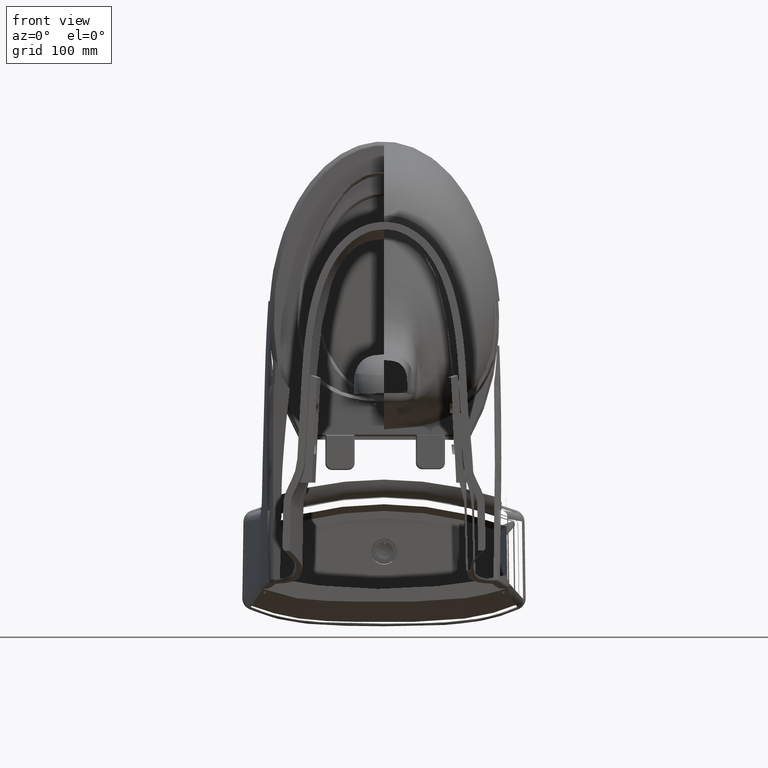
[diagram: clean part render]
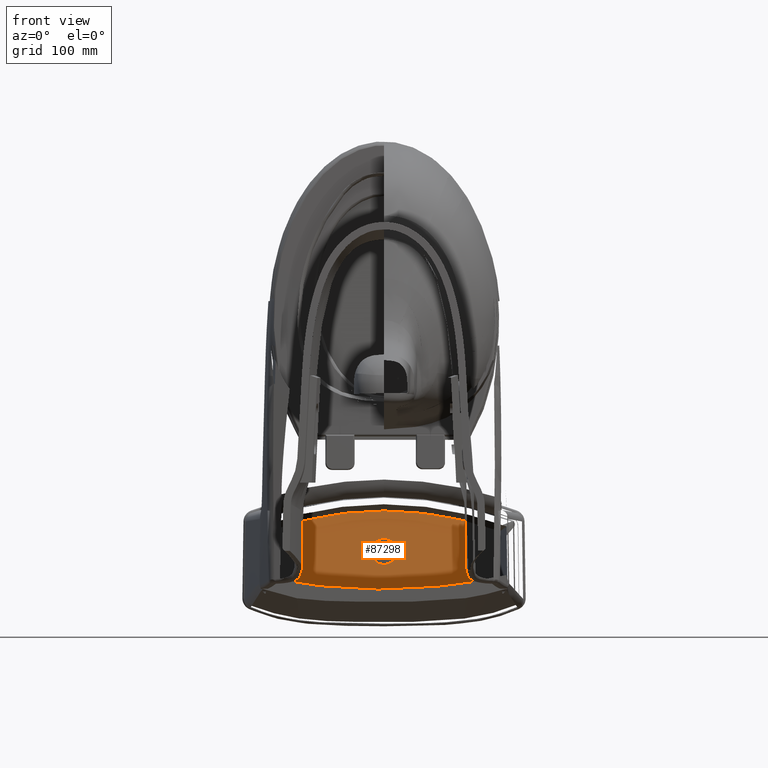
[diagram: same view with one face highlighted and labeled with its STEP entity id]
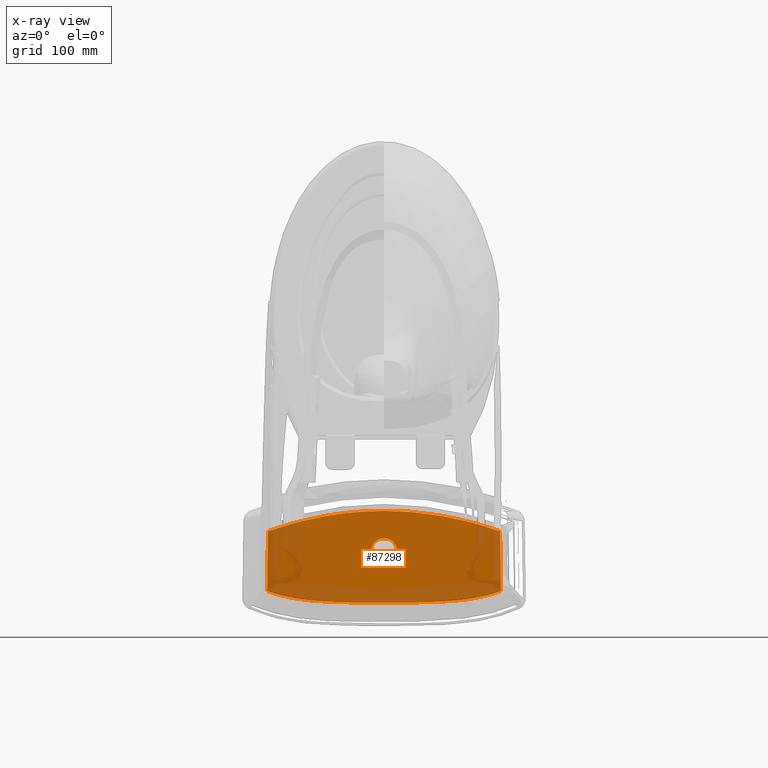
[diagram: x-ray of the same camera — body ghosted, the highlighted face saturated]
A machine part, front view. The second image highlights one B-rep face of the part: STEP entity #87298.
The next image is the same camera in x-ray: the body ghosted, the highlighted face saturated — about 32% of this face is hidden behind the body in this view.
In plain terms, the highlighted planar face has unit normal (0, -1, 0).
Its self-contained STEP definition (entity closure, byte-faithful):
#320 = CARTESIAN_POINT ( 'NONE',  ( 6.814301420918656800, 8.841708929692153200, 12.22677165400000000 ) ) ;
#373 = EDGE_CURVE ( 'NONE', #78906, #5636, #31769, .T. ) ;
#1837 = VERTEX_POINT ( 'NONE', #130178 ) ;
#1900 = EDGE_CURVE ( 'NONE', #68440, #115019, #59131, .T. ) ;
#2082 = B_SPLINE_CURVE_WITH_KNOTS ( 'NONE', 3,
 ( #23679, #184875, #81380, #185526 ),
 .UNSPECIFIED., .F., .F.,
 ( 4, 4 ),
 ( 0.0000000000000000000, 1.000000000000000000 ),
 .UNSPECIFIED. ) ;
#2390 = CARTESIAN_POINT ( 'NONE',  ( -0.9569594669106298300, 3.894683990885131000, 12.22677165400000000 ) ) ;
#3180 = CARTESIAN_POINT ( 'NONE',  ( -0.7621854053698152700, 6.537085579512861100, 12.22677165400000000 ) ) ;
#3389 = ORIENTED_EDGE ( 'NONE', *, *, #117992, .T. ) ;
#3444 = VERTEX_POINT ( 'NONE', #132008 ) ;
#3528 = CARTESIAN_POINT ( 'NONE',  ( -4.191811226497374100, 9.338006235245144300, 12.22677165400000000 ) ) ;
#3606 = CARTESIAN_POINT ( 'NONE',  ( -0.05170152306186206300, 5.545361485922833300, 12.22677165400000000 ) ) ;
#5077 = ORIENTED_EDGE ( 'NONE', *, *, #49901, .T. ) ;
#5124 = B_SPLINE_CURVE_WITH_KNOTS ( 'NONE', 3,
 ( #120003, #161168, #147640, #131604 ),
 .UNSPECIFIED., .F., .F.,
 ( 4, 4 ),
 ( 0.0000000000000000000, 1.000000000000000000 ),
 .UNSPECIFIED. ) ;
#5196 = VERTEX_POINT ( 'NONE', #136303 ) ;
#5376 = CARTESIAN_POINT ( 'NONE',  ( 0.3944686247231512500, 5.649338749271654700, 12.22677165400000000 ) ) ;
#5394 = CARTESIAN_POINT ( 'NONE',  ( 3.574063546760827000, 4.194614480752756300, 12.22677165400000000 ) ) ;
#5426 = EDGE_CURVE ( 'NONE', #9235, #182448, #86243, .T. ) ;
#5636 = VERTEX_POINT ( 'NONE', #185675 ) ;
#5979 = B_SPLINE_CURVE_WITH_KNOTS ( 'NONE', 3,
 ( #26959, #129678, #141925, #170901 ),
 .UNSPECIFIED., .F., .F.,
 ( 4, 4 ),
 ( 0.0000000000000000000, 1.000000000000000000 ),
 .UNSPECIFIED. ) ;
#6165 = CARTESIAN_POINT ( 'NONE',  ( -2.861144333287403800, 4.077594435480709700, 12.22677165400000000 ) ) ;
#6623 = EDGE_CURVE ( 'NONE', #27086, #185888, #174955, .T. ) ;
#7278 = CARTESIAN_POINT ( 'NONE',  ( 0.3490915139349230500, 5.625084177008006700, 12.22677165400000000 ) ) ;
#7339 = VERTEX_POINT ( 'NONE', #43379 ) ;
#7761 = CARTESIAN_POINT ( 'NONE',  ( 0.6547004891059451400, 6.770219938139369700, 12.22677165400000000 ) ) ;
#7989 = B_SPLINE_CURVE_WITH_KNOTS ( 'NONE', 3,
 ( #135152, #60098, #63823, #95267 ),
 .UNSPECIFIED., .F., .F.,
 ( 4, 4 ),
 ( 6.011369273682185300E-009, 0.9999999944473523300 ),
 .UNSPECIFIED. ) ;
#8234 = CARTESIAN_POINT ( 'NONE',  ( 0.4374568734168499100, 6.987463543383463500, 12.22677165400000000 ) ) ;
#8453 = CARTESIAN_POINT ( 'NONE',  ( 0.5126521425694678900, 3.877636081133635700, 12.22677165400000000 ) ) ;
#9235 = VERTEX_POINT ( 'NONE', #107630 ) ;
#9403 = EDGE_CURVE ( 'NONE', #144144, #131309, #85239, .T. ) ;
#9527 = CARTESIAN_POINT ( 'NONE',  ( 4.191410755424147500, 9.338039169035695900, 12.22677165400000000 ) ) ;
#10091 = CARTESIAN_POINT ( 'NONE',  ( -2.104938309406821300, 9.432147332707877800, 12.22677165400000000 ) ) ;
#10092 = CARTESIAN_POINT ( 'NONE',  ( 6.385914037462086400, 8.972021173760232700, 12.22677165400000000 ) ) ;
#10479 = CARTESIAN_POINT ( 'NONE',  ( 4.158307130771982300, 4.298243123015224000, 12.22677165400000000 ) ) ;
#11081 = CARTESIAN_POINT ( 'NONE',  ( -0.4374568830192923100, 5.678062575759053500, 12.22677165400000000 ) ) ;
#11313 = CARTESIAN_POINT ( 'NONE',  ( -1.794948935920472200, 9.438067504209449500, 12.22677165400000000 ) ) ;
#12000 = B_SPLINE_CURVE_WITH_KNOTS ( 'NONE', 3,
 ( #150007, #77293, #2390, #149364 ),
 .UNSPECIFIED., .F., .F.,
 ( 4, 4 ),
 ( 0.0000000000000000000, 1.000000000000000000 ),
 .UNSPECIFIED. ) ;
#12076 = CARTESIAN_POINT ( 'NONE',  ( 4.782898793892256300, 9.278486353399344500, 12.22677165400000000 ) ) ;
#12584 = VERTEX_POINT ( 'NONE', #158303 ) ;
#12713 = CARTESIAN_POINT ( 'NONE',  ( 4.482432253766930300, 9.310825966196063100, 12.22677165400000000 ) ) ;
#12859 = B_SPLINE_CURVE_WITH_KNOTS ( 'NONE', 3,
 ( #86739, #101514, #56648, #42473 ),
 .UNSPECIFIED., .F., .F.,
 ( 4, 4 ),
 ( 0.0000000000000000000, 1.000000000000000000 ),
 .UNSPECIFIED. ) ;
#12886 = CARTESIAN_POINT ( 'NONE',  ( -2.401624619230052100, 9.425249699620735600, 12.22677165400000000 ) ) ;
#12944 = ORIENTED_EDGE ( 'NONE', *, *, #140172, .T. ) ;
#13283 = ORIENTED_EDGE ( 'NONE', *, *, #134782, .T. ) ;
#13335 = CARTESIAN_POINT ( 'NONE',  ( 0.2043225206306295000, 7.094948466135433000, 12.22677165400000000 ) ) ;
#13369 = B_SPLINE_CURVE_WITH_KNOTS ( 'NONE', 3,
 ( #60247, #163023, #146969, #189459 ),
 .UNSPECIFIED., .F., .F.,
 ( 4, 4 ),
 ( 0.0000000000000000000, 1.000000000000000000 ),
 .UNSPECIFIED. ) ;
#13508 = ORIENTED_EDGE ( 'NONE', *, *, #63593, .T. ) ;
#13657 = ORIENTED_EDGE ( 'NONE', *, *, #126683, .T. ) ;
#13714 = VERTEX_POINT ( 'NONE', #175162 ) ;
#13776 = B_SPLINE_CURVE_WITH_KNOTS ( 'NONE', 3,
 ( #150630, #140976, #96649, #139708 ),
 .UNSPECIFIED., .F., .F.,
 ( 4, 4 ),
 ( 0.0000000000000000000, 1.000000000000000000 ),
 .UNSPECIFIED. ) ;
#14601 = CARTESIAN_POINT ( 'NONE',  ( 0.2535595585950785000, 7.080012574451181700, 12.22677165400000000 ) ) ;
#14771 = EDGE_CURVE ( 'NONE', #40895, #68440, #146194, .T. ) ;
#16196 = EDGE_CURVE ( 'NONE', #140010, #131880, #27214, .T. ) ;
#16332 = VERTEX_POINT ( 'NONE', #31190 ) ;
#16985 = EDGE_CURVE ( 'NONE', #115019, #118107, #130732, .T. ) ;
#17389 = CARTESIAN_POINT ( 'NONE',  ( 1.955131945138242700, 9.435199952326510000, 12.22677165400000000 ) ) ;
#17596 = CARTESIAN_POINT ( 'NONE',  ( -0.3013255362931887000, 5.605298858968109400, 12.22677165400000000 ) ) ;
#17599 = CARTESIAN_POINT ( 'NONE',  ( -3.571732609500395000, 4.194170856610630200, 12.22677165400000000 ) ) ;
#18120 = CARTESIAN_POINT ( 'NONE',  ( 0.7472495179849604200, 6.079203503020077700, 12.22677165400000000 ) ) ;
#18255 = VERTEX_POINT ( 'NONE', #83243 ) ;
#18968 = CARTESIAN_POINT ( 'NONE',  ( -4.801266558432840900E-009, 5.545361485922833300, 12.22677165400000000 ) ) ;
#19335 = DIRECTION ( 'NONE',  ( 0.0000000000000000000, 0.0000000000000000000, -1.000000000000000000 ) ) ;
#19792 = VERTEX_POINT ( 'NONE', #66282 ) ;
#19986 = CARTESIAN_POINT ( 'NONE',  ( 3.574063546760827000, 4.194614480752756300, 12.22677165400000000 ) ) ;
#20611 = CARTESIAN_POINT ( 'NONE',  ( 7.180759980999999600, 3.844174412999999700, 12.22677165400000000 ) ) ;
#20812 = CARTESIAN_POINT ( 'NONE',  ( -4.927199860106297200, 9.259544408294095400, 12.22677165400000000 ) ) ;
#20816 = VERTEX_POINT ( 'NONE', #62252 ) ;
#21621 = VERTEX_POINT ( 'NONE', #47083 ) ;
#22028 = CARTESIAN_POINT ( 'NONE',  ( 5.367227872045274900, 9.193927948651182900, 12.22677165400000000 ) ) ;
#22399 = CARTESIAN_POINT ( 'NONE',  ( 4.036354081957481000, 9.349669172989763400, 12.22677165400000000 ) ) ;
#22524 = VERTEX_POINT ( 'NONE', #28820 ) ;
#22581 = CARTESIAN_POINT ( 'NONE',  ( -0.7874015814925204900, 6.281061534697250300, 12.22677165400000000 ) ) ;
#22609 = CARTESIAN_POINT ( 'NONE',  ( 1.538308782896928600, 3.936354738373661900, 12.22677165400000000 ) ) ;
#22896 = CARTESIAN_POINT ( 'NONE',  ( -0.1029063289280614500, 7.115121400555380200, 12.22677165400000000 ) ) ;
#23085 = ORIENTED_EDGE ( 'NONE', *, *, #162698, .T. ) ;
#23107 = CARTESIAN_POINT ( 'NONE',  ( 2.691830268190984000, 9.416835571392518000, 12.22677165400000000 ) ) ;
#23170 = EDGE_CURVE ( 'NONE', #76058, #34381, #83494, .T. ) ;
#23197 = EDGE_CURVE ( 'NONE', #164460, #27639, #12859, .T. ) ;
#23470 = EDGE_CURVE ( 'NONE', #126330, #188130, #97601, .T. ) ;
#23649 = CARTESIAN_POINT ( 'NONE',  ( 0.5567769956412593800, 6.889540051052755100, 12.22677165400000000 ) ) ;
#23679 = CARTESIAN_POINT ( 'NONE',  ( 0.8974620883069685000, 9.450295841730708800, 12.22677165400000000 ) ) ;
#23855 = CARTESIAN_POINT ( 'NONE',  ( -6.240411462417324800, 9.009652181522835000, 12.22677165400000000 ) ) ;
#25093 = EDGE_CURVE ( 'NONE', #81509, #58813, #30460, .T. ) ;
#25166 = CARTESIAN_POINT ( 'NONE',  ( -0.5202184914263737700, 5.739427570119156400, 12.22677165400000000 ) ) ;
#26364 = CARTESIAN_POINT ( 'NONE',  ( 0.7722718805781891800, 6.179148632681889600, 12.22677165400000000 ) ) ;
#26851 = CARTESIAN_POINT ( 'NONE',  ( -5.964009242099733900, 9.081162469020998900, 12.22677165400000000 ) ) ;
#26959 = CARTESIAN_POINT ( 'NONE',  ( -3.571732609500395000, 4.194170856610630200, 12.22677165400000000 ) ) ;
#27086 = VERTEX_POINT ( 'NONE', #7761 ) ;
#27214 = B_SPLINE_CURVE_WITH_KNOTS ( 'NONE', 3,
 ( #160977, #56911, #101812, #72867 ),
 .UNSPECIFIED., .F., .F.,
 ( 4, 4 ),
 ( 0.0000000000000000000, 1.000000000000000000 ),
 .UNSPECIFIED. ) ;
#27639 = VERTEX_POINT ( 'NONE', #126894 ) ;
#27656 = CARTESIAN_POINT ( 'NONE',  ( -6.814694043024941200, 8.841572237095011400, 12.22677165400000000 ) ) ;
#27752 = CARTESIAN_POINT ( 'NONE',  ( 0.7076788807320484300, 5.983671542687533300, 12.22677165400000000 ) ) ;
#28222 = CARTESIAN_POINT ( 'NONE',  ( 4.036354081957481000, 9.349669172989763400, 12.22677165400000000 ) ) ;
#28256 = VERTEX_POINT ( 'NONE', #62225 ) ;
#28281 = CARTESIAN_POINT ( 'NONE',  ( -2.692182379233464900, 9.416825085105118700, 12.22677165400000000 ) ) ;
#28379 = CARTESIAN_POINT ( 'NONE',  ( 0.6834243090521402400, 5.938294428737140000, 12.22677165400000000 ) ) ;
#28739 = CARTESIAN_POINT ( 'NONE',  ( 0.1536144271588182300, 7.105034935226771400, 12.22677165400000000 ) ) ;
#28820 = CARTESIAN_POINT ( 'NONE',  ( -0.4374568830192923100, 6.987463543383465300, 12.22677165400000000 ) ) ;
#29416 = EDGE_CURVE ( 'NONE', #181692, #44821, #133729, .T. ) ;
#30274 = CARTESIAN_POINT ( 'NONE',  ( 0.6259766595853942800, 5.852317937031103600, 12.22677165400000000 ) ) ;
#30460 = B_SPLINE_CURVE_WITH_KNOTS ( 'NONE', 3,
 ( #96629, #83779, #64316, #87932 ),
 .UNSPECIFIED., .F., .F.,
 ( 4, 4 ),
 ( 0.0000000000000000000, 1.000000000000000000 ),
 .UNSPECIFIED. ) ;
#30932 = CARTESIAN_POINT ( 'NONE',  ( 1.538308782896928600, 3.936354738373661900, 12.22677165400000000 ) ) ;
#31152 = CARTESIAN_POINT ( 'NONE',  ( 0.4374568734168499100, 5.678062575759053500, 12.22677165400000000 ) ) ;
#31190 = CARTESIAN_POINT ( 'NONE',  ( 6.239422633288583600, 9.009903333187796900, 12.22677165400000000 ) ) ;
#31769 = B_SPLINE_CURVE_WITH_KNOTS ( 'NONE', 3,
 ( #65767, #168589, #140919, #113315 ),
 .UNSPECIFIED., .F., .F.,
 ( 4, 4 ),
 ( 0.0000000000000000000, 1.000000000000000000 ),
 .UNSPECIFIED. ) ;
#32032 = ORIENTED_EDGE ( 'NONE', *, *, #108887, .T. ) ;
#32142 = CARTESIAN_POINT ( 'NONE',  ( 2.243322859260747900, 9.428929477869292700, 12.22677165400000000 ) ) ;
#32373 = ORIENTED_EDGE ( 'NONE', *, *, #5426, .T. ) ;
#32464 = VERTEX_POINT ( 'NONE', #78864 ) ;
#32999 = CARTESIAN_POINT ( 'NONE',  ( 3.588530712330196600, 9.378798358264175400, 12.22677165400000000 ) ) ;
#33359 = B_SPLINE_CURVE_WITH_KNOTS ( 'NONE', 3,
 ( #110707, #122935, #137662, #182098 ),
 .UNSPECIFIED., .F., .F.,
 ( 4, 4 ),
 ( 0.0000000000000000000, 1.000000000000000000 ),
 .UNSPECIFIED. ) ;
#33531 = B_SPLINE_CURVE_WITH_KNOTS ( 'NONE', 3,
 ( #136352, #48428, #77845, #120387 ),
 .UNSPECIFIED., .F., .F.,
 ( 4, 4 ),
 ( 0.0000000000000000000, 1.000000000000000000 ),
 .UNSPECIFIED. ) ;
#34000 = CARTESIAN_POINT ( 'NONE',  ( -0.5933354903379297600, 6.852981553082147800, 12.22677165400000000 ) ) ;
#34155 = EDGE_LOOP ( 'NONE', ( #129611, #23085, #138093, #177809, #55285, #32373, #39854, #48226, #53165, #162589, #13283, #60977, #183996, #185776, #78584, #112230, #52587, #44489, #111790, #146568, #120927, #164758, #162479, #126890, #84717, #54988, #116097, #157067, #90598, #3389, #171308, #181131, #32032, #172334, #5077 ) ) ;
#34312 = CARTESIAN_POINT ( 'NONE',  ( 4.036354081957481000, 9.349669172989763400, 12.22677165400000000 ) ) ;
#34381 = VERTEX_POINT ( 'NONE', #154480 ) ;
#34536 = CARTESIAN_POINT ( 'NONE',  ( -0.7274641993866133300, 6.634088596288583200, 12.22677165400000000 ) ) ;
#34837 = CARTESIAN_POINT ( 'NONE',  ( 0.4374568734168499100, 5.678062575759053500, 12.22677165400000000 ) ) ;
#34841 = CARTESIAN_POINT ( 'NONE',  ( -5.897780670720473900, 4.732308302760367600, 12.22677165400000000 ) ) ;
#34917 = CARTESIAN_POINT ( 'NONE',  ( 0.7874015718902759300, 6.332763059571260700, 12.22677165400000000 ) ) ;
#35244 = CARTESIAN_POINT ( 'NONE',  ( -4.787188164470417000E-006, 9.454568095222441600, 12.22677165400000000 ) ) ;
#35332 = ORIENTED_EDGE ( 'NONE', *, *, #81902, .T. ) ;
#35353 = ORIENTED_EDGE ( 'NONE', *, *, #108668, .T. ) ;
#35675 = VERTEX_POINT ( 'NONE', #104240 ) ;
#35921 = B_SPLINE_CURVE_WITH_KNOTS ( 'NONE', 3,
 ( #45634, #88619, #30274, #132984 ),
 .UNSPECIFIED., .F., .F.,
 ( 4, 4 ),
 ( 0.0000000000000000000, 1.000000000000000000 ),
 .UNSPECIFIED. ) ;
#36056 = CARTESIAN_POINT ( 'NONE',  ( 1.025422403886062900, 3.897208949321640900, 12.22677165400000000 ) ) ;
#36447 = B_SPLINE_CURVE_WITH_KNOTS ( 'NONE', 3,
 ( #54582, #185020, #141257, #69889 ),
 .UNSPECIFIED., .F., .F.,
 ( 4, 4 ),
 ( 0.0000000000000000000, 1.000000000000000000 ),
 .UNSPECIFIED. ) ;
#36607 = PLANE ( 'NONE',  #130679 ) ;
#37308 = CARTESIAN_POINT ( 'NONE',  ( -0.7823583462679794000, 6.229856725734126000, 12.22677165400000000 ) ) ;
#37465 = CARTESIAN_POINT ( 'NONE',  ( 0.2043225206306295000, 5.570577653006824700, 12.22677165400000000 ) ) ;
#37549 = CARTESIAN_POINT ( 'NONE',  ( -3.588733334287796100, 9.378785546707481700, 12.22677165400000000 ) ) ;
#38025 = CARTESIAN_POINT ( 'NONE',  ( 3.588530712330196600, 9.378798358264175400, 12.22677165400000000 ) ) ;
#38626 = CARTESIAN_POINT ( 'NONE',  ( -0.4804451221387102100, 5.706786406008920000, 12.22677165400000000 ) ) ;
#38631 = VERTEX_POINT ( 'NONE', #113916 ) ;
#39854 = ORIENTED_EDGE ( 'NONE', *, *, #154871, .T. ) ;
#40411 = B_SPLINE_CURVE_WITH_KNOTS ( 'NONE', 3,
 ( #22399, #9527, #184862, #125107 ),
 .UNSPECIFIED., .F., .F.,
 ( 4, 4 ),
 ( 0.0000000000000000000, 1.000000000000000000 ),
 .UNSPECIFIED. ) ;
#40849 = EDGE_CURVE ( 'NONE', #170492, #137556, #86220, .T. ) ;
#40895 = VERTEX_POINT ( 'NONE', #130400 ) ;
#40912 = CARTESIAN_POINT ( 'NONE',  ( -2.692182379233464900, 9.416825085105118700, 12.22677165400000000 ) ) ;
#41145 = EDGE_CURVE ( 'NONE', #147592, #94644, #40411, .T. ) ;
#41824 = B_SPLINE_CURVE_WITH_KNOTS ( 'NONE', 3,
 ( #76163, #162419, #76797, #164290 ),
 .UNSPECIFIED., .F., .F.,
 ( 4, 4 ),
 ( 0.0000000000000000000, 1.000000000000000000 ),
 .UNSPECIFIED. ) ;
#42330 = CARTESIAN_POINT ( 'NONE',  ( 3.588530712330196600, 9.378798358264175400, 12.22677165400000000 ) ) ;
#42473 = CARTESIAN_POINT ( 'NONE',  ( -2.506322524103937500, 4.033466993894882600, 12.22677165400000000 ) ) ;
#42599 = CARTESIAN_POINT ( 'NONE',  ( 7.095612596380474800, 8.740618797360799200, 12.22677165400000000 ) ) ;
#43379 = CARTESIAN_POINT ( 'NONE',  ( -5.326049792720473500, 4.581307693083465100, 12.22677165400000000 ) ) ;
#44139 = CARTESIAN_POINT ( 'NONE',  ( -6.240411462417324800, 9.009652181522835000, 12.22677165400000000 ) ) ;
#44489 = ORIENTED_EDGE ( 'NONE', *, *, #129532, .T. ) ;
#44821 = VERTEX_POINT ( 'NONE', #37549 ) ;
#45562 = B_SPLINE_CURVE_WITH_KNOTS ( 'NONE', 3,
 ( #74159, #47833, #3606, #18968 ),
 .UNSPECIFIED., .F., .F.,
 ( 4, 4 ),
 ( 0.0000000000000000000, 1.000000000000000000 ),
 .UNSPECIFIED. ) ;
#45634 = CARTESIAN_POINT ( 'NONE',  ( 0.5567769956412593800, 5.775986068089763700, 12.22677165400000000 ) ) ;
#45883 = CARTESIAN_POINT ( 'NONE',  ( -4.036589922114173700, 9.349650051599999400, 12.22677165400000000 ) ) ;
#47083 = CARTESIAN_POINT ( 'NONE',  ( -0.3013255362931887000, 7.060227260174016800, 12.22677165400000000 ) ) ;
#47833 = CARTESIAN_POINT ( 'NONE',  ( -0.1029063289280541800, 5.550404718587138600, 12.22677165400000000 ) ) ;
#48197 = VERTEX_POINT ( 'NONE', #22028 ) ;
#48226 = ORIENTED_EDGE ( 'NONE', *, *, #25093, .T. ) ;
#48428 = CARTESIAN_POINT ( 'NONE',  ( 0.7621854101291337700, 6.537085579512862800, 12.22677165400000000 ) ) ;
#48532 = ORIENTED_EDGE ( 'NONE', *, *, #23170, .T. ) ;
#48682 = CARTESIAN_POINT ( 'NONE',  ( 7.095612596380474800, 8.740618797360799200, 12.22677165400000000 ) ) ;
#48743 = CARTESIAN_POINT ( 'NONE',  ( -0.1536144223998428800, 7.105034935226771400, 12.22677165400000000 ) ) ;
#48866 = VERTEX_POINT ( 'NONE', #50860 ) ;
#49901 = EDGE_CURVE ( 'NONE', #27639, #89333, #156900, .T. ) ;
#50389 = B_SPLINE_CURVE_WITH_KNOTS ( 'NONE', 3,
 ( #129447, #10091, #112799, #11313 ),
 .UNSPECIFIED., .F., .F.,
 ( 4, 4 ),
 ( 0.0000000000000000000, 1.000000000000000000 ),
 .UNSPECIFIED. ) ;
#50590 = ORIENTED_EDGE ( 'NONE', *, *, #75104, .T. ) ;
#50860 = CARTESIAN_POINT ( 'NONE',  ( 4.926200044413779900, 9.259675097461812500, 12.22677165400000000 ) ) ;
#51286 = CARTESIAN_POINT ( 'NONE',  ( 0.2946533118734452900, 9.454568648320604400, 12.22677165400000000 ) ) ;
#51434 = CARTESIAN_POINT ( 'NONE',  ( -0.7874015814925204900, 6.332763059571260700, 12.22677165400000000 ) ) ;
#51793 = CARTESIAN_POINT ( 'NONE',  ( -6.670332921736219900, 8.886857083379528200, 12.22677165400000000 ) ) ;
#52068 = CARTESIAN_POINT ( 'NONE',  ( -0.7722718758188968900, 6.179148632681889600, 12.22677165400000000 ) ) ;
#52209 = EDGE_LOOP ( 'NONE', ( #90994, #112109, #104980, #167144, #13508, #169527, #54806, #101766, #35353, #60656, #121403, #13657, #12944, #87788, #108615, #182756, #87865, #188405, #95787, #121126, #149563, #144193, #69670, #133220, #74751, #50590, #111894, #85610, #142732, #35332, #76794, #48532 ) ) ;
#52587 = ORIENTED_EDGE ( 'NONE', *, *, #99939, .T. ) ;
#52597 = CARTESIAN_POINT ( 'NONE',  ( 2.243322859260747900, 9.428929477869292700, 12.22677165400000000 ) ) ;
#53165 = ORIENTED_EDGE ( 'NONE', *, *, #65254, .T. ) ;
#53872 = CARTESIAN_POINT ( 'NONE',  ( 0.1536144271588182300, 5.560491183915748300, 12.22677165400000000 ) ) ;
#54110 = CARTESIAN_POINT ( 'NONE',  ( -0.7874015814925204900, 6.332763059571260700, 12.22677165400000000 ) ) ;
#54582 = CARTESIAN_POINT ( 'NONE',  ( -3.588733334287796100, 9.378785546707481700, 12.22677165400000000 ) ) ;
#54806 = ORIENTED_EDGE ( 'NONE', *, *, #173996, .T. ) ;
#54988 = ORIENTED_EDGE ( 'NONE', *, *, #75917, .T. ) ;
#55285 = ORIENTED_EDGE ( 'NONE', *, *, #126421, .T. ) ;
#56477 = CARTESIAN_POINT ( 'NONE',  ( -5.368396737216533800, 9.193730859498819200, 12.22677165400000000 ) ) ;
#56607 = CARTESIAN_POINT ( 'NONE',  ( -0.7874015814925204900, 6.384464584445008300, 12.22677165400000000 ) ) ;
#56648 = CARTESIAN_POINT ( 'NONE',  ( -2.149574116715748900, 3.989099947977034200, 12.22677165400000000 ) ) ;
#56911 = CARTESIAN_POINT ( 'NONE',  ( 0.7823583414529137200, 6.229856725734121500, 12.22677165400000000 ) ) ;
#57902 = CARTESIAN_POINT ( 'NONE',  ( 0.4374568734168499100, 5.678062575759053500, 12.22677165400000000 ) ) ;
#58030 = EDGE_CURVE ( 'NONE', #48197, #16332, #65470, .T. ) ;
#58042 = EDGE_CURVE ( 'NONE', #76374, #147592, #87868, .T. ) ;
#58364 = EDGE_CURVE ( 'NONE', #132445, #86586, #165566, .T. ) ;
#58813 = VERTEX_POINT ( 'NONE', #177294 ) ;
#59111 = B_SPLINE_CURVE_WITH_KNOTS ( 'NONE', 3,
 ( #65672, #37465, #145372, #87481 ),
 .UNSPECIFIED., .F., .F.,
 ( 4, 4 ),
 ( 0.0000000000000000000, 1.000000000000000000 ),
 .UNSPECIFIED. ) ;
#59131 = B_SPLINE_CURVE_WITH_KNOTS ( 'NONE', 3,
 ( #159514, #161427, #59277, #72068 ),
 .UNSPECIFIED., .F., .F.,
 ( 4, 4 ),
 ( 0.0000000000000000000, 1.000000000000000000 ),
 .UNSPECIFIED. ) ;
#59277 = CARTESIAN_POINT ( 'NONE',  ( -0.5933354903379297600, 5.812544566060108900, 12.22677165400000000 ) ) ;
#59528 = CARTESIAN_POINT ( 'NONE',  ( 1.794748439467873700, 9.438071009044882900, 12.22677165400000000 ) ) ;
#60098 = CARTESIAN_POINT ( 'NONE',  ( -7.066847652232016100, 6.271678497361223800, 12.22677165400000000 ) ) ;
#60247 = CARTESIAN_POINT ( 'NONE',  ( 0.4374568734168499100, 6.987463543383463500, 12.22677165400000000 ) ) ;
#60288 = EDGE_CURVE ( 'NONE', #22524, #126330, #41824, .T. ) ;
#60391 = CARTESIAN_POINT ( 'NONE',  ( -0.5567769908822829400, 5.775986068089763700, 12.22677165400000000 ) ) ;
#60656 = ORIENTED_EDGE ( 'NONE', *, *, #373, .T. ) ;
#60845 = EDGE_CURVE ( 'NONE', #35675, #122451, #33531, .T. ) ;
#60977 = ORIENTED_EDGE ( 'NONE', *, *, #123046, .T. ) ;
#62225 = CARTESIAN_POINT ( 'NONE',  ( -0.1536144223998428800, 5.560491183915748300, 12.22677165400000000 ) ) ;
#62252 = CARTESIAN_POINT ( 'NONE',  ( -0.3013255362931887000, 5.605298858968109400, 12.22677165400000000 ) ) ;
#62635 = CARTESIAN_POINT ( 'NONE',  ( 0.1536144271588182300, 7.105034935226771400, 12.22677165400000000 ) ) ;
#63099 = EDGE_CURVE ( 'NONE', #3444, #81353, #72819, .T. ) ;
#63155 = CARTESIAN_POINT ( 'NONE',  ( -2.001052855786620800E-006, 3.877636133809645900, 12.22677165400000000 ) ) ;
#63593 = EDGE_CURVE ( 'NONE', #122451, #27086, #66969, .T. ) ;
#63823 = CARTESIAN_POINT ( 'NONE',  ( -7.084281189694284100, 7.482716408044923100, 12.22677165400000000 ) ) ;
#64316 = CARTESIAN_POINT ( 'NONE',  ( -4.635773271093193600, 9.295450749108134400, 12.22677165400000000 ) ) ;
#64548 = VERTEX_POINT ( 'NONE', #134067 ) ;
#64786 = CARTESIAN_POINT ( 'NONE',  ( -0.6547004843468518000, 6.770219938139369700, 12.22677165400000000 ) ) ;
#64939 = VERTEX_POINT ( 'NONE', #124400 ) ;
#65134 = CARTESIAN_POINT ( 'NONE',  ( -0.7722718758188968900, 6.179148632681889600, 12.22677165400000000 ) ) ;
#65254 = EDGE_CURVE ( 'NONE', #58813, #181692, #82215, .T. ) ;
#65470 = B_SPLINE_CURVE_WITH_KNOTS ( 'NONE', 3,
 ( #85967, #131599, #72439, #145097 ),
 .UNSPECIFIED., .F., .F.,
 ( 4, 4 ),
 ( 0.0000000000000000000, 1.000000000000000000 ),
 .UNSPECIFIED. ) ;
#65672 = CARTESIAN_POINT ( 'NONE',  ( 0.1536144271588182300, 5.560491183915748300, 12.22677165400000000 ) ) ;
#65767 = CARTESIAN_POINT ( 'NONE',  ( 0.1536144271588182300, 7.105034935226771400, 12.22677165400000000 ) ) ;
#65910 = CARTESIAN_POINT ( 'NONE',  ( -4.801266558432840900E-009, 5.545361485922833300, 12.22677165400000000 ) ) ;
#65985 = CARTESIAN_POINT ( 'NONE',  ( 0.8974620883069685000, 9.450295841730708800, 12.22677165400000000 ) ) ;
#66219 = CARTESIAN_POINT ( 'NONE',  ( 2.691830268190984000, 9.416835571392518000, 12.22677165400000000 ) ) ;
#66282 = CARTESIAN_POINT ( 'NONE',  ( 2.243322859260747900, 9.428929477869292700, 12.22677165400000000 ) ) ;
#66526 = CARTESIAN_POINT ( 'NONE',  ( 7.043316475424384200, 5.107508135994864400, 12.22677165400000000 ) ) ;
#66969 = B_SPLINE_CURVE_WITH_KNOTS ( 'NONE', 3,
 ( #84298, #85549, #100937, #128646 ),
 .UNSPECIFIED., .F., .F.,
 ( 4, 4 ),
 ( 0.0000000000000000000, 1.000000000000000000 ),
 .UNSPECIFIED. ) ;
#68089 = EDGE_CURVE ( 'NONE', #34381, #140010, #162618, .T. ) ;
#68354 = VERTEX_POINT ( 'NONE', #168269 ) ;
#68440 = VERTEX_POINT ( 'NONE', #188166 ) ;
#68601 = B_SPLINE_CURVE_WITH_KNOTS ( 'NONE', 3,
 ( #122855, #34841, #178830, #120952 ),
 .UNSPECIFIED., .F., .F.,
 ( 4, 4 ),
 ( 0.0000000000000000000, 1.000000000000000000 ),
 .UNSPECIFIED. ) ;
#68933 = B_SPLINE_CURVE_WITH_KNOTS ( 'NONE', 3,
 ( #143554, #81033, #79723, #108720 ),
 .UNSPECIFIED., .F., .F.,
 ( 4, 4 ),
 ( 0.0000000000000000000, 1.000000000000000000 ),
 .UNSPECIFIED. ) ;
#69501 = EDGE_CURVE ( 'NONE', #81049, #132445, #83622, .T. ) ;
#69670 = ORIENTED_EDGE ( 'NONE', *, *, #16985, .T. ) ;
#69810 = CARTESIAN_POINT ( 'NONE',  ( 2.550809493355785700, 9.421225830422445200, 12.22677165400000000 ) ) ;
#69829 = B_SPLINE_CURVE_WITH_KNOTS ( 'NONE', 3,
 ( #48682, #179153, #181063, #107078 ),
 .UNSPECIFIED., .F., .F.,
 ( 4, 4 ),
 ( 0.0000000000000000000, 0.9999999939884660600 ),
 .UNSPECIFIED. ) ;
#69889 = CARTESIAN_POINT ( 'NONE',  ( -2.692182379233464900, 9.416825085105118700, 12.22677165400000000 ) ) ;
#71241 = VERTEX_POINT ( 'NONE', #59528 ) ;
#71541 = B_SPLINE_CURVE_WITH_KNOTS ( 'NONE', 3,
 ( #35244, #51286, #124519, #65985 ),
 .UNSPECIFIED., .F., .F.,
 ( 4, 4 ),
 ( 0.0000000000000000000, 1.000000000000000000 ),
 .UNSPECIFIED. ) ;
#72068 = CARTESIAN_POINT ( 'NONE',  ( -0.5567769908822829400, 5.775986068089763700, 12.22677165400000000 ) ) ;
#72306 = CARTESIAN_POINT ( 'NONE',  ( -0.7274641993866133300, 6.031437522853936500, 12.22677165400000000 ) ) ;
#72439 = CARTESIAN_POINT ( 'NONE',  ( 5.962914405788575700, 9.081407386104595900, 12.22677165400000000 ) ) ;
#72819 = B_SPLINE_CURVE_WITH_KNOTS ( 'NONE', 3,
 ( #93235, #7278, #5376, #34837 ),
 .UNSPECIFIED., .F., .F.,
 ( 4, 4 ),
 ( 0.0000000000000000000, 1.000000000000000000 ),
 .UNSPECIFIED. ) ;
#72867 = CARTESIAN_POINT ( 'NONE',  ( 0.7874015718902759300, 6.332763059571260700, 12.22677165400000000 ) ) ;
#73789 = B_SPLINE_CURVE_WITH_KNOTS ( 'NONE', 3,
 ( #128140, #155798, #22896, #185365 ),
 .UNSPECIFIED., .F., .F.,
 ( 4, 4 ),
 ( 0.0000000000000000000, 1.000000000000000000 ),
 .UNSPECIFIED. ) ;
#73836 = CARTESIAN_POINT ( 'NONE',  ( 2.895297258596024400, 4.074220123501837600, 12.22677165400000000 ) ) ;
#74159 = CARTESIAN_POINT ( 'NONE',  ( -0.1536144223998428800, 5.560491183915748300, 12.22677165400000000 ) ) ;
#74178 = B_SPLINE_CURVE_WITH_KNOTS ( 'NONE', 3,
 ( #65910, #170036, #94835, #110257 ),
 .UNSPECIFIED., .F., .F.,
 ( 4, 4 ),
 ( 0.0000000000000000000, 1.000000000000000000 ),
 .UNSPECIFIED. ) ;
#74575 = CARTESIAN_POINT ( 'NONE',  ( 0.7274642041456695900, 6.031437522853936500, 12.22677165400000000 ) ) ;
#74751 = ORIENTED_EDGE ( 'NONE', *, *, #100381, .T. ) ;
#75104 = EDGE_CURVE ( 'NONE', #28256, #64548, #45562, .T. ) ;
#75160 = EDGE_CURVE ( 'NONE', #38631, #170492, #7989, .T. ) ;
#75446 = CARTESIAN_POINT ( 'NONE',  ( -5.368396737216533800, 9.193730859498819200, 12.22677165400000000 ) ) ;
#75917 = EDGE_CURVE ( 'NONE', #16332, #1837, #157590, .T. ) ;
#76058 = VERTEX_POINT ( 'NONE', #189890 ) ;
#76163 = CARTESIAN_POINT ( 'NONE',  ( -0.4374568830192923100, 6.987463543383465300, 12.22677165400000000 ) ) ;
#76374 = VERTEX_POINT ( 'NONE', #32999 ) ;
#76794 = ORIENTED_EDGE ( 'NONE', *, *, #103249, .T. ) ;
#76797 = CARTESIAN_POINT ( 'NONE',  ( -0.5202184914263730000, 6.926098549023100400, 12.22677165400000000 ) ) ;
#76952 = CARTESIAN_POINT ( 'NONE',  ( -0.5567769908822829400, 6.889540051052755100, 12.22677165400000000 ) ) ;
#77293 = CARTESIAN_POINT ( 'NONE',  ( -0.4783910654241802500, 3.877636178960511600, 12.22677165400000000 ) ) ;
#77796 = CARTESIAN_POINT ( 'NONE',  ( -0.3490915187502775500, 5.625084177008004900, 12.22677165400000000 ) ) ;
#77845 = CARTESIAN_POINT ( 'NONE',  ( 0.7472495179849604200, 6.586322616122180000, 12.22677165400000000 ) ) ;
#78436 = CARTESIAN_POINT ( 'NONE',  ( -4.036589922114173700, 9.349650051599999400, 12.22677165400000000 ) ) ;
#78584 = ORIENTED_EDGE ( 'NONE', *, *, #81064, .T. ) ;
#78864 = CARTESIAN_POINT ( 'NONE',  ( 0.4374568734168499100, 6.987463543383463500, 12.22677165400000000 ) ) ;
#78906 = VERTEX_POINT ( 'NONE', #62635 ) ;
#78940 = CARTESIAN_POINT ( 'NONE',  ( 5.898248870680838300, 4.732466622373753900, 12.22677165400000000 ) ) ;
#79723 = CARTESIAN_POINT ( 'NONE',  ( 5.224004432251331500, 9.217964400867451500, 12.22677165400000000 ) ) ;
#79772 = B_SPLINE_CURVE_WITH_KNOTS ( 'NONE', 3,
 ( #66219, #82266, #154927, #38025 ),
 .UNSPECIFIED., .F., .F.,
 ( 4, 4 ),
 ( 0.0000000000000000000, 1.000000000000000000 ),
 .UNSPECIFIED. ) ;
#80244 = CARTESIAN_POINT ( 'NONE',  ( 5.326703131851180800, 4.581505628814960900, 12.22677165400000000 ) ) ;
#80368 = EDGE_CURVE ( 'NONE', #180873, #40895, #151463, .T. ) ;
#80634 = CARTESIAN_POINT ( 'NONE',  ( -0.5938354292877413600, 9.453144253411286600, 12.22677165400000000 ) ) ;
#81033 = CARTESIAN_POINT ( 'NONE',  ( 5.076995156374168000, 9.239880117137662600, 12.22677165400000000 ) ) ;
#81049 = VERTEX_POINT ( 'NONE', #5394 ) ;
#81064 = EDGE_CURVE ( 'NONE', #64939, #13714, #123185, .T. ) ;
#81353 = VERTEX_POINT ( 'NONE', #31152 ) ;
#81355 = CARTESIAN_POINT ( 'NONE',  ( 0.5202184961853538700, 6.926098549023096000, 12.22677165400000000 ) ) ;
#81380 = CARTESIAN_POINT ( 'NONE',  ( 1.496855905394198500, 9.443403645559843800, 12.22677165400000000 ) ) ;
#81509 = VERTEX_POINT ( 'NONE', #20812 ) ;
#81532 = CARTESIAN_POINT ( 'NONE',  ( 0.6547004891059451400, 6.770219938139369700, 12.22677165400000000 ) ) ;
#81697 = CARTESIAN_POINT ( 'NONE',  ( 5.326703131851180800, 4.581505628814960900, 12.22677165400000000 ) ) ;
#81902 = EDGE_CURVE ( 'NONE', #81353, #68354, #121885, .T. ) ;
#82063 = CARTESIAN_POINT ( 'NONE',  ( 2.401307023712373500, 9.425257132581370100, 12.22677165400000000 ) ) ;
#82215 = B_SPLINE_CURVE_WITH_KNOTS ( 'NONE', 3,
 ( #91351, #133848, #3528, #45883 ),
 .UNSPECIFIED., .F., .F.,
 ( 4, 4 ),
 ( 0.0000000000000000000, 1.000000000000000000 ),
 .UNSPECIFIED. ) ;
#82266 = CARTESIAN_POINT ( 'NONE',  ( 3.018967753980229800, 9.406651121170206400, 12.22677165400000000 ) ) ;
#82332 = CARTESIAN_POINT ( 'NONE',  ( 3.574063546760827000, 4.194614480752756300, 12.22677165400000000 ) ) ;
#82842 = CARTESIAN_POINT ( 'NONE',  ( -6.670332921736219900, 8.886857083379528200, 12.22677165400000000 ) ) ;
#83243 = CARTESIAN_POINT ( 'NONE',  ( 7.095612596380474800, 8.740618797360799200, 12.22677165400000000 ) ) ;
#83282 = CARTESIAN_POINT ( 'NONE',  ( 0.4804451221105507400, 6.958739713133332400, 12.22677165400000000 ) ) ;
#83494 = B_SPLINE_CURVE_WITH_KNOTS ( 'NONE', 3,
 ( #87369, #28379, #27752, #85478 ),
 .UNSPECIFIED., .F., .F.,
 ( 4, 4 ),
 ( 0.0000000000000000000, 1.000000000000000000 ),
 .UNSPECIFIED. ) ;
#83622 = B_SPLINE_CURVE_WITH_KNOTS ( 'NONE', 3,
 ( #19986, #73836, #132385, #118245 ),
 .UNSPECIFIED., .F., .F.,
 ( 4, 4 ),
 ( 0.0000000000000000000, 1.000000000000000000 ),
 .UNSPECIFIED. ) ;
#83779 = CARTESIAN_POINT ( 'NONE',  ( -4.783801918242799500, 9.278379650626901000, 12.22677165400000000 ) ) ;
#84298 = CARTESIAN_POINT ( 'NONE',  ( 0.7274642041456695900, 6.634088596288583200, 12.22677165400000000 ) ) ;
#84717 = ORIENTED_EDGE ( 'NONE', *, *, #58030, .T. ) ;
#85239 = B_SPLINE_CURVE_WITH_KNOTS ( 'NONE', 3,
 ( #161921, #115663, #56607, #190232 ),
 .UNSPECIFIED., .F., .F.,
 ( 4, 4 ),
 ( 0.0000000000000000000, 1.000000000000000000 ),
 .UNSPECIFIED. ) ;
#85319 = CARTESIAN_POINT ( 'NONE',  ( -4.927199860106297200, 9.259544408294095400, 12.22677165400000000 ) ) ;
#85392 = CARTESIAN_POINT ( 'NONE',  ( -2.243622608193307500, 9.428923072090551500, 12.22677165400000000 ) ) ;
#85407 = CARTESIAN_POINT ( 'NONE',  ( -1.197864327138319600, 9.447477041490289600, 12.22677165400000000 ) ) ;
#85478 = CARTESIAN_POINT ( 'NONE',  ( 0.7274642041456695900, 6.031437522853936500, 12.22677165400000000 ) ) ;
#85549 = CARTESIAN_POINT ( 'NONE',  ( 0.7076788807320484300, 6.681854576454722600, 12.22677165400000000 ) ) ;
#85590 = EDGE_CURVE ( 'NONE', #188130, #103105, #5124, .T. ) ;
#85610 = ORIENTED_EDGE ( 'NONE', *, *, #175657, .T. ) ;
#85967 = CARTESIAN_POINT ( 'NONE',  ( 5.367227872045274900, 9.193927948651182900, 12.22677165400000000 ) ) ;
#86142 = CARTESIAN_POINT ( 'NONE',  ( 0.5202184961853516500, 5.739427570119158200, 12.22677165400000000 ) ) ;
#86220 = B_SPLINE_CURVE_WITH_KNOTS ( 'NONE', 3,
 ( #161865, #117519, #27656, #145803 ),
 .UNSPECIFIED., .F., .F.,
 ( 4, 4 ),
 ( 0.0000000000000000000, 1.000000000000000000 ),
 .UNSPECIFIED. ) ;
#86243 = B_SPLINE_CURVE_WITH_KNOTS ( 'NONE', 3,
 ( #44139, #26851, #115440, #75446 ),
 .UNSPECIFIED., .F., .F.,
 ( 4, 4 ),
 ( 0.0000000000000000000, 1.000000000000000000 ),
 .UNSPECIFIED. ) ;
#86586 = VERTEX_POINT ( 'NONE', #63155 ) ;
#86739 = CARTESIAN_POINT ( 'NONE',  ( -1.435707205512204200, 3.928779569583504400, 12.22677165400000000 ) ) ;
#87298 = ADVANCED_FACE ( 'NONE', ( #112734, #158661 ), #36607, .T. ) ;
#87369 = CARTESIAN_POINT ( 'NONE',  ( 0.6547004891059451400, 5.895306181002755600, 12.22677165400000000 ) ) ;
#87481 = CARTESIAN_POINT ( 'NONE',  ( 0.3013255410521651900, 5.605298858968111200, 12.22677165400000000 ) ) ;
#87788 = ORIENTED_EDGE ( 'NONE', *, *, #60288, .T. ) ;
#87865 = ORIENTED_EDGE ( 'NONE', *, *, #174901, .T. ) ;
#87868 = B_SPLINE_CURVE_WITH_KNOTS ( 'NONE', 3,
 ( #42330, #175323, #174673, #28222 ),
 .UNSPECIFIED., .F., .F.,
 ( 4, 4 ),
 ( 0.0000000000000000000, 1.000000000000000000 ),
 .UNSPECIFIED. ) ;
#87932 = CARTESIAN_POINT ( 'NONE',  ( -4.483113918657480200, 9.310757703737795800, 12.22677165400000000 ) ) ;
#88040 = CARTESIAN_POINT ( 'NONE',  ( -2.243622608193307500, 9.428923072090551500, 12.22677165400000000 ) ) ;
#88619 = CARTESIAN_POINT ( 'NONE',  ( 0.5933354950971656500, 5.812544566060106300, 12.22677165400000000 ) ) ;
#88655 = CARTESIAN_POINT ( 'NONE',  ( 0.4804451221105485700, 5.706786406008920800, 12.22677165400000000 ) ) ;
#89333 = VERTEX_POINT ( 'NONE', #17599 ) ;
#90598 = ORIENTED_EDGE ( 'NONE', *, *, #121290, .T. ) ;
#90994 = ORIENTED_EDGE ( 'NONE', *, *, #68089, .T. ) ;
#91351 = CARTESIAN_POINT ( 'NONE',  ( -4.483113918657480200, 9.310757703737795800, 12.22677165400000000 ) ) ;
#91551 = B_SPLINE_CURVE_WITH_KNOTS ( 'NONE', 3,
 ( #103272, #145753, #132861, #175341 ),
 .UNSPECIFIED., .F., .F.,
 ( 4, 4 ),
 ( 0.0000000000000000000, 1.000000000000000000 ),
 .UNSPECIFIED. ) ;
#92116 = CARTESIAN_POINT ( 'NONE',  ( -0.7472495132257214200, 6.079203503020078600, 12.22677165400000000 ) ) ;
#92279 = CARTESIAN_POINT ( 'NONE',  ( -0.7472495132257206400, 6.586322616122179100, 12.22677165400000000 ) ) ;
#92409 = CARTESIAN_POINT ( 'NONE',  ( 1.794748439467873700, 9.438071009044882900, 12.22677165400000000 ) ) ;
#92763 = CARTESIAN_POINT ( 'NONE',  ( -0.7274641993866133300, 6.031437522853936500, 12.22677165400000000 ) ) ;
#92863 = B_SPLINE_CURVE_WITH_KNOTS ( 'NONE', 3,
 ( #48743, #150215, #121329, #136678 ),
 .UNSPECIFIED., .F., .F.,
 ( 4, 4 ),
 ( 0.0000000000000000000, 1.000000000000000000 ),
 .UNSPECIFIED. ) ;
#93099 = B_SPLINE_CURVE_WITH_KNOTS ( 'NONE', 3,
 ( #28281, #174731, #12886, #85392 ),
 .UNSPECIFIED., .F., .F.,
 ( 4, 4 ),
 ( 0.0000000000000000000, 1.000000000000000000 ),
 .UNSPECIFIED. ) ;
#93235 = CARTESIAN_POINT ( 'NONE',  ( 0.3013255410521651900, 5.605298858968111200, 12.22677165400000000 ) ) ;
#94332 = CARTESIAN_POINT ( 'NONE',  ( -0.6259766548261195300, 6.813208182111019100, 12.22677165400000000 ) ) ;
#94548 = CARTESIAN_POINT ( 'NONE',  ( -0.7722718758188968900, 6.486377486460629200, 12.22677165400000000 ) ) ;
#94644 = VERTEX_POINT ( 'NONE', #134051 ) ;
#94669 = CARTESIAN_POINT ( 'NONE',  ( -3.216281028419556400, 4.131162389719292200, 12.22677165400000000 ) ) ;
#94835 = CARTESIAN_POINT ( 'NONE',  ( 0.1029063336870295500, 5.550404718587138600, 12.22677165400000000 ) ) ;
#95267 = CARTESIAN_POINT ( 'NONE',  ( -7.095614865811207000, 8.740615557045986300, 12.22677165400000000 ) ) ;
#95787 = ORIENTED_EDGE ( 'NONE', *, *, #139900, .T. ) ;
#96264 = EDGE_CURVE ( 'NONE', #89333, #7339, #5979, .T. ) ;
#96267 = CARTESIAN_POINT ( 'NONE',  ( 2.691830268190984000, 9.416835571392518000, 12.22677165400000000 ) ) ;
#96629 = CARTESIAN_POINT ( 'NONE',  ( -4.927199860106297200, 9.259544408294095400, 12.22677165400000000 ) ) ;
#96649 = CARTESIAN_POINT ( 'NONE',  ( -0.2043225158716563400, 5.570577653006824700, 12.22677165400000000 ) ) ;
#96834 = CARTESIAN_POINT ( 'NONE',  ( -3.894980344018333300, 9.360272796281368100, 12.22677165400000000 ) ) ;
#97491 = B_SPLINE_CURVE_WITH_KNOTS ( 'NONE', 3,
 ( #51434, #22581, #37308, #52068 ),
 .UNSPECIFIED., .F., .F.,
 ( 4, 4 ),
 ( 0.0000000000000000000, 1.000000000000000000 ),
 .UNSPECIFIED. ) ;
#97601 = B_SPLINE_CURVE_WITH_KNOTS ( 'NONE', 3,
 ( #76952, #34000, #94332, #64786 ),
 .UNSPECIFIED., .F., .F.,
 ( 4, 4 ),
 ( 0.0000000000000000000, 1.000000000000000000 ),
 .UNSPECIFIED. ) ;
#98119 = CARTESIAN_POINT ( 'NONE',  ( -4.036589922114173700, 9.349650051599999400, 12.22677165400000000 ) ) ;
#99939 = EDGE_CURVE ( 'NONE', #5196, #71241, #2082, .T. ) ;
#99951 = CARTESIAN_POINT ( 'NONE',  ( -7.095614865811207000, 8.740615557045986300, 12.22677165400000000 ) ) ;
#100381 = EDGE_CURVE ( 'NONE', #20816, #28256, #13776, .T. ) ;
#100937 = CARTESIAN_POINT ( 'NONE',  ( 0.6834243090521402400, 6.727231690404984500, 12.22677165400000000 ) ) ;
#100981 = VERTEX_POINT ( 'NONE', #53872 ) ;
#101514 = CARTESIAN_POINT ( 'NONE',  ( -1.792702343851837500, 3.954204139873241300, 12.22677165400000000 ) ) ;
#101766 = ORIENTED_EDGE ( 'NONE', *, *, #155055, .T. ) ;
#101812 = CARTESIAN_POINT ( 'NONE',  ( 0.7874015718902759300, 6.281061534697244900, 12.22677165400000000 ) ) ;
#102721 = EDGE_CURVE ( 'NONE', #48866, #48197, #68933, .T. ) ;
#103105 = VERTEX_POINT ( 'NONE', #188994 ) ;
#103249 = EDGE_CURVE ( 'NONE', #68354, #76058, #35921, .T. ) ;
#103272 = CARTESIAN_POINT ( 'NONE',  ( -0.3013255362931887000, 7.060227260174016800, 12.22677165400000000 ) ) ;
#103522 = CARTESIAN_POINT ( 'NONE',  ( 6.956262329105716600, 8.792899845138796500, 12.22677165400000000 ) ) ;
#103682 = CARTESIAN_POINT ( 'NONE',  ( -1.435707205512204200, 3.928779569583504400, 12.22677165400000000 ) ) ;
#103744 = CARTESIAN_POINT ( 'NONE',  ( 0.3013255410521651900, 7.060227260174016800, 12.22677165400000000 ) ) ;
#104240 = CARTESIAN_POINT ( 'NONE',  ( 0.7722718805781891800, 6.486377486460629200, 12.22677165400000000 ) ) ;
#104980 = ORIENTED_EDGE ( 'NONE', *, *, #113492, .T. ) ;
#105309 = CARTESIAN_POINT ( 'NONE',  ( -0.7722718758188968900, 6.179148632681889600, 12.22677165400000000 ) ) ;
#107078 = CARTESIAN_POINT ( 'NONE',  ( 7.043316475424384200, 5.107508135994864400, 12.22677165400000000 ) ) ;
#107630 = CARTESIAN_POINT ( 'NONE',  ( -6.240411462417324800, 9.009652181522835000, 12.22677165400000000 ) ) ;
#108573 = CARTESIAN_POINT ( 'NONE',  ( 0.6259766595853949500, 6.813208182111021700, 12.22677165400000000 ) ) ;
#108615 = ORIENTED_EDGE ( 'NONE', *, *, #23470, .T. ) ;
#108668 = EDGE_CURVE ( 'NONE', #174953, #78906, #141590, .T. ) ;
#108720 = CARTESIAN_POINT ( 'NONE',  ( 5.367227872045274900, 9.193927948651182900, 12.22677165400000000 ) ) ;
#108831 = CARTESIAN_POINT ( 'NONE',  ( -3.571732609500395000, 4.194170856610630200, 12.22677165400000000 ) ) ;
#108887 = EDGE_CURVE ( 'NONE', #86586, #164460, #12000, .T. ) ;
#109855 = CARTESIAN_POINT ( 'NONE',  ( 0.5567769956412593800, 6.889540051052755100, 12.22677165400000000 ) ) ;
#110257 = CARTESIAN_POINT ( 'NONE',  ( 0.1536144271588182300, 5.560491183915748300, 12.22677165400000000 ) ) ;
#110707 = CARTESIAN_POINT ( 'NONE',  ( 0.7874015718902759300, 6.332763059571260700, 12.22677165400000000 ) ) ;
#111311 = CARTESIAN_POINT ( 'NONE',  ( 4.742520325802100700, 4.427206839035958900, 12.22677165400000000 ) ) ;
#111544 = CARTESIAN_POINT ( 'NONE',  ( 6.239422633288583600, 9.009903333187796900, 12.22677165400000000 ) ) ;
#111790 = ORIENTED_EDGE ( 'NONE', *, *, #152818, .T. ) ;
#111894 = ORIENTED_EDGE ( 'NONE', *, *, #167099, .T. ) ;
#112109 = ORIENTED_EDGE ( 'NONE', *, *, #16196, .T. ) ;
#112230 = ORIENTED_EDGE ( 'NONE', *, *, #128643, .T. ) ;
#112669 = CARTESIAN_POINT ( 'NONE',  ( 6.669729871819292600, 8.887046051020867300, 12.22677165400000000 ) ) ;
#112734 = FACE_BOUND ( 'NONE', #52209, .T. ) ;
#112799 = CARTESIAN_POINT ( 'NONE',  ( -1.955380418649209200, 9.435195476747509200, 12.22677165400000000 ) ) ;
#112935 = CARTESIAN_POINT ( 'NONE',  ( -3.745694814742873500, 9.369984627983861000, 12.22677165400000000 ) ) ;
#113315 = CARTESIAN_POINT ( 'NONE',  ( -4.801266558432840900E-009, 7.120164633219684600, 12.22677165400000000 ) ) ;
#113492 = EDGE_CURVE ( 'NONE', #131880, #35675, #33359, .T. ) ;
#113916 = CARTESIAN_POINT ( 'NONE',  ( -7.043314253424408200, 5.107501824994888500, 12.22677165400000000 ) ) ;
#114820 = CARTESIAN_POINT ( 'NONE',  ( 4.926200044413779900, 9.259675097461812500, 12.22677165400000000 ) ) ;
#115007 = CARTESIAN_POINT ( 'NONE',  ( -1.497008137557742400, 9.443401209294751900, 12.22677165400000000 ) ) ;
#115019 = VERTEX_POINT ( 'NONE', #60391 ) ;
#115350 = EDGE_CURVE ( 'NONE', #94644, #48866, #187645, .T. ) ;
#115440 = CARTESIAN_POINT ( 'NONE',  ( -5.673337667032804200, 9.142522028346327500, 12.22677165400000000 ) ) ;
#115663 = CARTESIAN_POINT ( 'NONE',  ( -0.7823583462679794000, 6.435669393408130800, 12.22677165400000000 ) ) ;
#115902 = CARTESIAN_POINT ( 'NONE',  ( -0.4374568830192923100, 5.678062575759053500, 12.22677165400000000 ) ) ;
#116097 = ORIENTED_EDGE ( 'NONE', *, *, #124477, .T. ) ;
#117519 = CARTESIAN_POINT ( 'NONE',  ( -6.956454691112868200, 8.792825068635167400, 12.22677165400000000 ) ) ;
#117972 = B_SPLINE_CURVE_WITH_KNOTS ( 'NONE', 3,
 ( #138111, #124014, #78940, #80244 ),
 .UNSPECIFIED., .F., .F.,
 ( 4, 4 ),
 ( 0.0000000000000000000, 1.000000000000000000 ),
 .UNSPECIFIED. ) ;
#117992 = EDGE_CURVE ( 'NONE', #169048, #81049, #184158, .T. ) ;
#118107 = VERTEX_POINT ( 'NONE', #11081 ) ;
#118245 = CARTESIAN_POINT ( 'NONE',  ( 1.538308782896928600, 3.936354738373661900, 12.22677165400000000 ) ) ;
#118595 = CARTESIAN_POINT ( 'NONE',  ( -0.6834243138673210500, 5.938294428737133800, 12.22677165400000000 ) ) ;
#120003 = CARTESIAN_POINT ( 'NONE',  ( -0.6547004843468518000, 6.770219938139369700, 12.22677165400000000 ) ) ;
#120135 = CARTESIAN_POINT ( 'NONE',  ( 2.104656751735867600, 9.432152775267979900, 12.22677165400000000 ) ) ;
#120387 = CARTESIAN_POINT ( 'NONE',  ( 0.7274642041456695900, 6.634088596288583200, 12.22677165400000000 ) ) ;
#120927 = ORIENTED_EDGE ( 'NONE', *, *, #58042, .T. ) ;
#120952 = CARTESIAN_POINT ( 'NONE',  ( -7.043314253424408200, 5.107501824994888500, 12.22677165400000000 ) ) ;
#121126 = ORIENTED_EDGE ( 'NONE', *, *, #80368, .T. ) ;
#121257 = CARTESIAN_POINT ( 'NONE',  ( 0.3013255410521651900, 7.060227260174016800, 12.22677165400000000 ) ) ;
#121290 = EDGE_CURVE ( 'NONE', #182765, #169048, #117972, .T. ) ;
#121329 = CARTESIAN_POINT ( 'NONE',  ( -0.2535595538361020700, 7.080012574451181700, 12.22677165400000000 ) ) ;
#121403 = ORIENTED_EDGE ( 'NONE', *, *, #187557, .T. ) ;
#121885 = B_SPLINE_CURVE_WITH_KNOTS ( 'NONE', 3,
 ( #57902, #88655, #86142, #130506 ),
 .UNSPECIFIED., .F., .F.,
 ( 4, 4 ),
 ( 0.0000000000000000000, 1.000000000000000000 ),
 .UNSPECIFIED. ) ;
#122451 = VERTEX_POINT ( 'NONE', #132506 ) ;
#122787 = CARTESIAN_POINT ( 'NONE',  ( -2.001052855786620800E-006, 3.877636133809645900, 12.22677165400000000 ) ) ;
#122855 = CARTESIAN_POINT ( 'NONE',  ( -5.326049792720473500, 4.581307693083465100, 12.22677165400000000 ) ) ;
#122935 = CARTESIAN_POINT ( 'NONE',  ( 0.7874015718902759300, 6.384464584445012700, 12.22677165400000000 ) ) ;
#123046 = EDGE_CURVE ( 'NONE', #123787, #134339, #93099, .T. ) ;
#123185 = B_SPLINE_CURVE_WITH_KNOTS ( 'NONE', 3,
 ( #183543, #80634, #153297, #169352 ),
 .UNSPECIFIED., .F., .F.,
 ( 4, 4 ),
 ( 0.0000000000000000000, 1.000000000000000000 ),
 .UNSPECIFIED. ) ;
#123643 = CARTESIAN_POINT ( 'NONE',  ( -0.7621854053698159400, 6.128440539629396600, 12.22677165400000000 ) ) ;
#123787 = VERTEX_POINT ( 'NONE', #40912 ) ;
#124014 = CARTESIAN_POINT ( 'NONE',  ( 6.470453318397112200, 4.907800784435433000, 12.22677165400000000 ) ) ;
#124400 = CARTESIAN_POINT ( 'NONE',  ( -0.8975175046622045900, 9.450295000796064200, 12.22677165400000000 ) ) ;
#124477 = EDGE_CURVE ( 'NONE', #1837, #18255, #150785, .T. ) ;
#124519 = CARTESIAN_POINT ( 'NONE',  ( 0.5938089370384895800, 9.453144563823361300, 12.22677165400000000 ) ) ;
#125107 = CARTESIAN_POINT ( 'NONE',  ( 4.482432253766930300, 9.310825966196063100, 12.22677165400000000 ) ) ;
#126312 = CARTESIAN_POINT ( 'NONE',  ( 6.529349783638989100, 8.931068746371256100, 12.22677165400000000 ) ) ;
#126330 = VERTEX_POINT ( 'NONE', #181270 ) ;
#126421 = EDGE_CURVE ( 'NONE', #137556, #9235, #164704, .T. ) ;
#126683 = EDGE_CURVE ( 'NONE', #12584, #21621, #92863, .T. ) ;
#126890 = ORIENTED_EDGE ( 'NONE', *, *, #102721, .T. ) ;
#126894 = CARTESIAN_POINT ( 'NONE',  ( -2.506322524103937500, 4.033466993894882600, 12.22677165400000000 ) ) ;
#128101 = EDGE_CURVE ( 'NONE', #138795, #76374, #79772, .T. ) ;
#128140 = CARTESIAN_POINT ( 'NONE',  ( -4.801266558432840900E-009, 7.120164633219684600, 12.22677165400000000 ) ) ;
#128643 = EDGE_CURVE ( 'NONE', #13714, #5196, #71541, .T. ) ;
#128646 = CARTESIAN_POINT ( 'NONE',  ( 0.6547004891059451400, 6.770219938139369700, 12.22677165400000000 ) ) ;
#129447 = CARTESIAN_POINT ( 'NONE',  ( -2.243622608193307500, 9.428923072090551500, 12.22677165400000000 ) ) ;
#129532 = EDGE_CURVE ( 'NONE', #71241, #19792, #186965, .T. ) ;
#129611 = ORIENTED_EDGE ( 'NONE', *, *, #96264, .T. ) ;
#129678 = CARTESIAN_POINT ( 'NONE',  ( -4.156647556376771700, 4.297854714613779800, 12.22677165400000000 ) ) ;
#129793 = B_SPLINE_CURVE_WITH_KNOTS ( 'NONE', 3,
 ( #34536, #92279, #3180, #181704 ),
 .UNSPECIFIED., .F., .F.,
 ( 4, 4 ),
 ( 0.0000000000000000000, 1.000000000000000000 ),
 .UNSPECIFIED. ) ;
#129904 = B_SPLINE_CURVE_WITH_KNOTS ( 'NONE', 3,
 ( #56477, #186938, #143805, #85319 ),
 .UNSPECIFIED., .F., .F.,
 ( 4, 4 ),
 ( 0.0000000000000000000, 1.000000000000000000 ),
 .UNSPECIFIED. ) ;
#130178 = CARTESIAN_POINT ( 'NONE',  ( 6.669729871819292600, 8.887046051020867300, 12.22677165400000000 ) ) ;
#130400 = CARTESIAN_POINT ( 'NONE',  ( -0.7274641993866133300, 6.031437522853936500, 12.22677165400000000 ) ) ;
#130506 = CARTESIAN_POINT ( 'NONE',  ( 0.5567769956412593800, 5.775986068089763700, 12.22677165400000000 ) ) ;
#130679 = AXIS2_PLACEMENT_3D ( 'NONE', #20611, #19335, #139358 ) ;
#130732 = B_SPLINE_CURVE_WITH_KNOTS ( 'NONE', 3,
 ( #184471, #25166, #38626, #141346 ),
 .UNSPECIFIED., .F., .F.,
 ( 4, 4 ),
 ( 0.0000000000000000000, 1.000000000000000000 ),
 .UNSPECIFIED. ) ;
#131309 = VERTEX_POINT ( 'NONE', #54110 ) ;
#131599 = CARTESIAN_POINT ( 'NONE',  ( 5.672182818707472800, 9.142748924592391200, 12.22677165400000000 ) ) ;
#131604 = CARTESIAN_POINT ( 'NONE',  ( -0.7274641993866133300, 6.634088596288583200, 12.22677165400000000 ) ) ;
#131880 = VERTEX_POINT ( 'NONE', #34917 ) ;
#132008 = CARTESIAN_POINT ( 'NONE',  ( 0.3013255410521651900, 5.605298858968111200, 12.22677165400000000 ) ) ;
#132385 = CARTESIAN_POINT ( 'NONE',  ( 2.216712337308058200, 3.988133542708806300, 12.22677165400000000 ) ) ;
#132445 = VERTEX_POINT ( 'NONE', #30932 ) ;
#132506 = CARTESIAN_POINT ( 'NONE',  ( 0.7274642041456695900, 6.634088596288583200, 12.22677165400000000 ) ) ;
#132861 = CARTESIAN_POINT ( 'NONE',  ( -0.3944686343256454400, 7.016187369870865000, 12.22677165400000000 ) ) ;
#132984 = CARTESIAN_POINT ( 'NONE',  ( 0.6547004891059451400, 5.895306181002755600, 12.22677165400000000 ) ) ;
#133220 = ORIENTED_EDGE ( 'NONE', *, *, #185315, .T. ) ;
#133729 = B_SPLINE_CURVE_WITH_KNOTS ( 'NONE', 3,
 ( #98119, #96834, #112935, #156008 ),
 .UNSPECIFIED., .F., .F.,
 ( 4, 4 ),
 ( 0.0000000000000000000, 1.000000000000000000 ),
 .UNSPECIFIED. ) ;
#133830 = CARTESIAN_POINT ( 'NONE',  ( -0.3944686343256454400, 5.649338749271653800, 12.22677165400000000 ) ) ;
#133848 = CARTESIAN_POINT ( 'NONE',  ( -4.340652558678476300, 9.325042119291076400, 12.22677165400000000 ) ) ;
#134051 = CARTESIAN_POINT ( 'NONE',  ( 4.482432253766930300, 9.310825966196063100, 12.22677165400000000 ) ) ;
#134067 = CARTESIAN_POINT ( 'NONE',  ( -4.801266558432840900E-009, 5.545361485922833300, 12.22677165400000000 ) ) ;
#134339 = VERTEX_POINT ( 'NONE', #88040 ) ;
#134577 = CARTESIAN_POINT ( 'NONE',  ( -0.6547004843468518000, 5.895306181002755600, 12.22677165400000000 ) ) ;
#134782 = EDGE_CURVE ( 'NONE', #44821, #123787, #36447, .T. ) ;
#135152 = CARTESIAN_POINT ( 'NONE',  ( -7.043314253424408200, 5.107501824994888500, 12.22677165400000000 ) ) ;
#136303 = CARTESIAN_POINT ( 'NONE',  ( 0.8974620883069685000, 9.450295841730708800, 12.22677165400000000 ) ) ;
#136352 = CARTESIAN_POINT ( 'NONE',  ( 0.7722718805781891800, 6.486377486460629200, 12.22677165400000000 ) ) ;
#136678 = CARTESIAN_POINT ( 'NONE',  ( -0.3013255362931887000, 7.060227260174016800, 12.22677165400000000 ) ) ;
#137556 = VERTEX_POINT ( 'NONE', #51793 ) ;
#137662 = CARTESIAN_POINT ( 'NONE',  ( 0.7823583414529137200, 6.435669393408136200, 12.22677165400000000 ) ) ;
#138093 = ORIENTED_EDGE ( 'NONE', *, *, #75160, .T. ) ;
#138111 = CARTESIAN_POINT ( 'NONE',  ( 7.043316475424384200, 5.107508135994864400, 12.22677165400000000 ) ) ;
#138795 = VERTEX_POINT ( 'NONE', #96267 ) ;
#139358 = DIRECTION ( 'NONE',  ( -1.000000000000000000, 0.0000000000000000000, 0.0000000000000000000 ) ) ;
#139708 = CARTESIAN_POINT ( 'NONE',  ( -0.1536144223998428800, 5.560491183915748300, 12.22677165400000000 ) ) ;
#139900 = EDGE_CURVE ( 'NONE', #131309, #180873, #97491, .T. ) ;
#140010 = VERTEX_POINT ( 'NONE', #26364 ) ;
#140172 = EDGE_CURVE ( 'NONE', #21621, #22524, #91551, .T. ) ;
#140329 = B_SPLINE_CURVE_WITH_KNOTS ( 'NONE', 3,
 ( #52597, #82063, #69810, #23107 ),
 .UNSPECIFIED., .F., .F.,
 ( 4, 4 ),
 ( 0.0000000000000000000, 1.000000000000000000 ),
 .UNSPECIFIED. ) ;
#140919 = CARTESIAN_POINT ( 'NONE',  ( 0.05170152303367522200, 7.120164633219684600, 12.22677165400000000 ) ) ;
#140976 = CARTESIAN_POINT ( 'NONE',  ( -0.2535595538361049600, 5.585513544690944500, 12.22677165400000000 ) ) ;
#141257 = CARTESIAN_POINT ( 'NONE',  ( -3.019242590458690100, 9.406640360215091000, 12.22677165400000000 ) ) ;
#141346 = CARTESIAN_POINT ( 'NONE',  ( -0.4374568830192923100, 5.678062575759053500, 12.22677165400000000 ) ) ;
#141590 = B_SPLINE_CURVE_WITH_KNOTS ( 'NONE', 3,
 ( #103744, #14601, #13335, #28739 ),
 .UNSPECIFIED., .F., .F.,
 ( 4, 4 ),
 ( 0.0000000000000000000, 1.000000000000000000 ),
 .UNSPECIFIED. ) ;
#141925 = CARTESIAN_POINT ( 'NONE',  ( -4.741419950783464900, 4.426900326771391100, 12.22677165400000000 ) ) ;
#141942 = CARTESIAN_POINT ( 'NONE',  ( -6.386756417362198200, 8.971790076602889700, 12.22677165400000000 ) ) ;
#142732 = ORIENTED_EDGE ( 'NONE', *, *, #63099, .T. ) ;
#143554 = CARTESIAN_POINT ( 'NONE',  ( 4.926200044413779900, 9.259675097461812500, 12.22677165400000000 ) ) ;
#143805 = CARTESIAN_POINT ( 'NONE',  ( -5.078039866185041400, 9.239731657343702100, 12.22677165400000000 ) ) ;
#143894 = CARTESIAN_POINT ( 'NONE',  ( -0.8975175046622045900, 9.450295000796064200, 12.22677165400000000 ) ) ;
#144144 = VERTEX_POINT ( 'NONE', #94548 ) ;
#144193 = ORIENTED_EDGE ( 'NONE', *, *, #1900, .T. ) ;
#145097 = CARTESIAN_POINT ( 'NONE',  ( 6.239422633288583600, 9.009903333187796900, 12.22677165400000000 ) ) ;
#145372 = CARTESIAN_POINT ( 'NONE',  ( 0.2535595585950785000, 5.585513544690944500, 12.22677165400000000 ) ) ;
#145600 = CARTESIAN_POINT ( 'NONE',  ( -0.7076788855472416800, 5.983671542687528000, 12.22677165400000000 ) ) ;
#145753 = CARTESIAN_POINT ( 'NONE',  ( -0.3490915187502775500, 7.040441942134382500, 12.22677165400000000 ) ) ;
#145803 = CARTESIAN_POINT ( 'NONE',  ( -6.670332921736219900, 8.886857083379528200, 12.22677165400000000 ) ) ;
#146194 = B_SPLINE_CURVE_WITH_KNOTS ( 'NONE', 3,
 ( #72306, #145600, #118595, #134577 ),
 .UNSPECIFIED., .F., .F.,
 ( 4, 4 ),
 ( 0.0000000000000000000, 1.000000000000000000 ),
 .UNSPECIFIED. ) ;
#146568 = ORIENTED_EDGE ( 'NONE', *, *, #128101, .T. ) ;
#146969 = CARTESIAN_POINT ( 'NONE',  ( 0.3490915139349172200, 7.040441942134384200, 12.22677165400000000 ) ) ;
#147592 = VERTEX_POINT ( 'NONE', #34312 ) ;
#147640 = CARTESIAN_POINT ( 'NONE',  ( -0.7076788855472423400, 6.681854576454990800, 12.22677165400000000 ) ) ;
#149364 = CARTESIAN_POINT ( 'NONE',  ( -1.435707205512204200, 3.928779569583504400, 12.22677165400000000 ) ) ;
#149563 = ORIENTED_EDGE ( 'NONE', *, *, #14771, .T. ) ;
#149771 = CARTESIAN_POINT ( 'NONE',  ( 0.7621854101291337700, 6.128440539629394800, 12.22677165400000000 ) ) ;
#149841 = CARTESIAN_POINT ( 'NONE',  ( -0.6547004843468518000, 6.770219938139369700, 12.22677165400000000 ) ) ;
#150007 = CARTESIAN_POINT ( 'NONE',  ( -2.001052855786620800E-006, 3.877636133809645900, 12.22677165400000000 ) ) ;
#150215 = CARTESIAN_POINT ( 'NONE',  ( -0.2043225158716534300, 7.094948466135433000, 12.22677165400000000 ) ) ;
#150630 = CARTESIAN_POINT ( 'NONE',  ( -0.3013255362931887000, 5.605298858968109400, 12.22677165400000000 ) ) ;
#150785 = B_SPLINE_CURVE_WITH_KNOTS ( 'NONE', 3,
 ( #112669, #320, #103522, #42599 ),
 .UNSPECIFIED., .F., .F.,
 ( 4, 4 ),
 ( 0.0000000000000000000, 0.9999999530690413300 ),
 .UNSPECIFIED. ) ;
#150893 = EDGE_CURVE ( 'NONE', #18255, #182765, #69829, .T. ) ;
#151463 = B_SPLINE_CURVE_WITH_KNOTS ( 'NONE', 3,
 ( #65134, #123643, #92116, #92763 ),
 .UNSPECIFIED., .F., .F.,
 ( 4, 4 ),
 ( 0.0000000000000000000, 1.000000000000000000 ),
 .UNSPECIFIED. ) ;
#151523 = B_SPLINE_CURVE_WITH_KNOTS ( 'NONE', 3,
 ( #115902, #133830, #77796, #17596 ),
 .UNSPECIFIED., .F., .F.,
 ( 4, 4 ),
 ( 0.0000000000000000000, 1.000000000000000000 ),
 .UNSPECIFIED. ) ;
#152224 = B_SPLINE_CURVE_WITH_KNOTS ( 'NONE', 3,
 ( #23649, #81355, #83282, #8234 ),
 .UNSPECIFIED., .F., .F.,
 ( 4, 4 ),
 ( 0.0000000000000000000, 1.000000000000000000 ),
 .UNSPECIFIED. ) ;
#152303 = CARTESIAN_POINT ( 'NONE',  ( 0.5933354950971663200, 6.852981553082149600, 12.22677165400000000 ) ) ;
#152818 = EDGE_CURVE ( 'NONE', #19792, #138795, #140329, .T. ) ;
#153297 = CARTESIAN_POINT ( 'NONE',  ( -0.2946645234630612700, 9.454568618220079700, 12.22677165400000000 ) ) ;
#153488 = B_SPLINE_CURVE_WITH_KNOTS ( 'NONE', 3,
 ( #173516, #115007, #85407, #143894 ),
 .UNSPECIFIED., .F., .F.,
 ( 4, 4 ),
 ( 0.0000000000000000000, 1.000000000000000000 ),
 .UNSPECIFIED. ) ;
#154480 = CARTESIAN_POINT ( 'NONE',  ( 0.7274642041456695900, 6.031437522853936500, 12.22677165400000000 ) ) ;
#154871 = EDGE_CURVE ( 'NONE', #182448, #81509, #129904, .T. ) ;
#154927 = CARTESIAN_POINT ( 'NONE',  ( 3.317867902026634000, 9.393972050127425500, 12.22677165400000000 ) ) ;
#155055 = EDGE_CURVE ( 'NONE', #32464, #174953, #13369, .T. ) ;
#155798 = CARTESIAN_POINT ( 'NONE',  ( -0.05170152306186934900, 7.120164633219684600, 12.22677165400000000 ) ) ;
#156008 = CARTESIAN_POINT ( 'NONE',  ( -3.588733334287796100, 9.378785546707481700, 12.22677165400000000 ) ) ;
#156900 = B_SPLINE_CURVE_WITH_KNOTS ( 'NONE', 3,
 ( #167295, #6165, #94669, #108831 ),
 .UNSPECIFIED., .F., .F.,
 ( 4, 4 ),
 ( 0.0000000000000000000, 1.000000000000000000 ),
 .UNSPECIFIED. ) ;
#157067 = ORIENTED_EDGE ( 'NONE', *, *, #150893, .T. ) ;
#157590 = B_SPLINE_CURVE_WITH_KNOTS ( 'NONE', 3,
 ( #111544, #10092, #126312, #157762 ),
 .UNSPECIFIED., .F., .F.,
 ( 4, 4 ),
 ( 0.0000000000000000000, 1.000000000000000000 ),
 .UNSPECIFIED. ) ;
#157762 = CARTESIAN_POINT ( 'NONE',  ( 6.669729871819292600, 8.887046051020867300, 12.22677165400000000 ) ) ;
#158303 = CARTESIAN_POINT ( 'NONE',  ( -0.1536144223998428800, 7.105034935226771400, 12.22677165400000000 ) ) ;
#158540 = CARTESIAN_POINT ( 'NONE',  ( 4.634976197009973700, 9.295536642977428000, 12.22677165400000000 ) ) ;
#158661 = FACE_OUTER_BOUND ( 'NONE', #34155, .T. ) ;
#159514 = CARTESIAN_POINT ( 'NONE',  ( -0.6547004843468518000, 5.895306181002755600, 12.22677165400000000 ) ) ;
#160977 = CARTESIAN_POINT ( 'NONE',  ( 0.7722718805781891800, 6.179148632681889600, 12.22677165400000000 ) ) ;
#161168 = CARTESIAN_POINT ( 'NONE',  ( -0.6834243138673218300, 6.727231690405253600, 12.22677165400000000 ) ) ;
#161427 = CARTESIAN_POINT ( 'NONE',  ( -0.6259766548261195300, 5.852317937031106300, 12.22677165400000000 ) ) ;
#161571 = EDGE_CURVE ( 'NONE', #183454, #64939, #153488, .T. ) ;
#161865 = CARTESIAN_POINT ( 'NONE',  ( -7.095614865811207000, 8.740615557045986300, 12.22677165400000000 ) ) ;
#161921 = CARTESIAN_POINT ( 'NONE',  ( -0.7722718758188968900, 6.486377486460629200, 12.22677165400000000 ) ) ;
#162419 = CARTESIAN_POINT ( 'NONE',  ( -0.4804451221387095500, 6.958739713133337700, 12.22677165400000000 ) ) ;
#162479 = ORIENTED_EDGE ( 'NONE', *, *, #115350, .T. ) ;
#162589 = ORIENTED_EDGE ( 'NONE', *, *, #29416, .T. ) ;
#162618 = B_SPLINE_CURVE_WITH_KNOTS ( 'NONE', 3,
 ( #74575, #18120, #149771, #163919 ),
 .UNSPECIFIED., .F., .F.,
 ( 4, 4 ),
 ( 0.0000000000000000000, 1.000000000000000000 ),
 .UNSPECIFIED. ) ;
#162698 = EDGE_CURVE ( 'NONE', #7339, #38631, #68601, .T. ) ;
#163023 = CARTESIAN_POINT ( 'NONE',  ( 0.3944686247231454800, 7.016187369870867700, 12.22677165400000000 ) ) ;
#163919 = CARTESIAN_POINT ( 'NONE',  ( 0.7722718805781891800, 6.179148632681889600, 12.22677165400000000 ) ) ;
#164290 = CARTESIAN_POINT ( 'NONE',  ( -0.5567769908822829400, 6.889540051052755100, 12.22677165400000000 ) ) ;
#164460 = VERTEX_POINT ( 'NONE', #103682 ) ;
#164704 = B_SPLINE_CURVE_WITH_KNOTS ( 'NONE', 3,
 ( #82842, #170269, #141942, #23855 ),
 .UNSPECIFIED., .F., .F.,
 ( 4, 4 ),
 ( 0.0000000000000000000, 1.000000000000000000 ),
 .UNSPECIFIED. ) ;
#164758 = ORIENTED_EDGE ( 'NONE', *, *, #41145, .T. ) ;
#165566 = B_SPLINE_CURVE_WITH_KNOTS ( 'NONE', 3,
 ( #22609, #36056, #8453, #122787 ),
 .UNSPECIFIED., .F., .F.,
 ( 4, 4 ),
 ( 0.0000000000000000000, 1.000000000000000000 ),
 .UNSPECIFIED. ) ;
#167099 = EDGE_CURVE ( 'NONE', #64548, #100981, #74178, .T. ) ;
#167144 = ORIENTED_EDGE ( 'NONE', *, *, #60845, .T. ) ;
#167295 = CARTESIAN_POINT ( 'NONE',  ( -2.506322524103937500, 4.033466993894882600, 12.22677165400000000 ) ) ;
#168269 = CARTESIAN_POINT ( 'NONE',  ( 0.5567769956412593800, 5.775986068089763700, 12.22677165400000000 ) ) ;
#168504 = CARTESIAN_POINT ( 'NONE',  ( 5.326703131851180800, 4.581505628814960900, 12.22677165400000000 ) ) ;
#168589 = CARTESIAN_POINT ( 'NONE',  ( 0.1029063336870368200, 7.115121400555380200, 12.22677165400000000 ) ) ;
#169048 = VERTEX_POINT ( 'NONE', #168504 ) ;
#169352 = CARTESIAN_POINT ( 'NONE',  ( -4.787188164470417000E-006, 9.454568095222441600, 12.22677165400000000 ) ) ;
#169527 = ORIENTED_EDGE ( 'NONE', *, *, #6623, .T. ) ;
#170036 = CARTESIAN_POINT ( 'NONE',  ( 0.05170152303366793600, 5.545361485922833300, 12.22677165400000000 ) ) ;
#170164 = CARTESIAN_POINT ( 'NONE',  ( -5.368396737216533800, 9.193730859498819200, 12.22677165400000000 ) ) ;
#170269 = CARTESIAN_POINT ( 'NONE',  ( -6.530063570468495700, 8.930858377221786900, 12.22677165400000000 ) ) ;
#170492 = VERTEX_POINT ( 'NONE', #99951 ) ;
#170901 = CARTESIAN_POINT ( 'NONE',  ( -5.326049792720473500, 4.581307693083465100, 12.22677165400000000 ) ) ;
#171308 = ORIENTED_EDGE ( 'NONE', *, *, #69501, .T. ) ;
#172334 = ORIENTED_EDGE ( 'NONE', *, *, #23197, .T. ) ;
#173516 = CARTESIAN_POINT ( 'NONE',  ( -1.794948935920472200, 9.438067504209449500, 12.22677165400000000 ) ) ;
#173604 = CARTESIAN_POINT ( 'NONE',  ( -1.794948935920472200, 9.438067504209449500, 12.22677165400000000 ) ) ;
#173996 = EDGE_CURVE ( 'NONE', #185888, #32464, #152224, .T. ) ;
#174673 = CARTESIAN_POINT ( 'NONE',  ( 3.894752910138100400, 9.360289946083467400, 12.22677165400000000 ) ) ;
#174731 = CARTESIAN_POINT ( 'NONE',  ( -2.551144542910104700, 9.421217037292258600, 12.22677165400000000 ) ) ;
#174901 = EDGE_CURVE ( 'NONE', #103105, #144144, #129793, .T. ) ;
#174953 = VERTEX_POINT ( 'NONE', #121257 ) ;
#174955 = B_SPLINE_CURVE_WITH_KNOTS ( 'NONE', 3,
 ( #81532, #108573, #152303, #109855 ),
 .UNSPECIFIED., .F., .F.,
 ( 4, 4 ),
 ( 0.0000000000000000000, 1.000000000000000000 ),
 .UNSPECIFIED. ) ;
#175162 = CARTESIAN_POINT ( 'NONE',  ( -4.787188164470417000E-006, 9.454568095222441600, 12.22677165400000000 ) ) ;
#175323 = CARTESIAN_POINT ( 'NONE',  ( 3.745478453595672000, 9.369999674508271400, 12.22677165400000000 ) ) ;
#175341 = CARTESIAN_POINT ( 'NONE',  ( -0.4374568830192923100, 6.987463543383465300, 12.22677165400000000 ) ) ;
#175657 = EDGE_CURVE ( 'NONE', #100981, #3444, #59111, .T. ) ;
#176596 = CARTESIAN_POINT ( 'NONE',  ( 0.5567769956412593800, 6.889540051052755100, 12.22677165400000000 ) ) ;
#177294 = CARTESIAN_POINT ( 'NONE',  ( -4.483113918657480200, 9.310757703737795800, 12.22677165400000000 ) ) ;
#177809 = ORIENTED_EDGE ( 'NONE', *, *, #40849, .T. ) ;
#178830 = CARTESIAN_POINT ( 'NONE',  ( -6.470202157480316400, 4.907706339732546200, 12.22677165400000000 ) ) ;
#179153 = CARTESIAN_POINT ( 'NONE',  ( 7.084280141406952500, 7.482688537702476800, 12.22677165400000000 ) ) ;
#180873 = VERTEX_POINT ( 'NONE', #105309 ) ;
#181063 = CARTESIAN_POINT ( 'NONE',  ( 7.066848094548412900, 6.271651653034097300, 12.22677165400000000 ) ) ;
#181131 = ORIENTED_EDGE ( 'NONE', *, *, #58364, .T. ) ;
#181270 = CARTESIAN_POINT ( 'NONE',  ( -0.5567769908822829400, 6.889540051052755100, 12.22677165400000000 ) ) ;
#181692 = VERTEX_POINT ( 'NONE', #78436 ) ;
#181704 = CARTESIAN_POINT ( 'NONE',  ( -0.7722718758188968900, 6.486377486460629200, 12.22677165400000000 ) ) ;
#182098 = CARTESIAN_POINT ( 'NONE',  ( 0.7722718805781891800, 6.486377486460629200, 12.22677165400000000 ) ) ;
#182448 = VERTEX_POINT ( 'NONE', #170164 ) ;
#182756 = ORIENTED_EDGE ( 'NONE', *, *, #85590, .T. ) ;
#182765 = VERTEX_POINT ( 'NONE', #66526 ) ;
#183020 = EDGE_CURVE ( 'NONE', #134339, #183454, #50389, .T. ) ;
#183454 = VERTEX_POINT ( 'NONE', #173604 ) ;
#183543 = CARTESIAN_POINT ( 'NONE',  ( -0.8975175046622045900, 9.450295000796064200, 12.22677165400000000 ) ) ;
#183996 = ORIENTED_EDGE ( 'NONE', *, *, #183020, .T. ) ;
#184158 = B_SPLINE_CURVE_WITH_KNOTS ( 'NONE', 3,
 ( #81697, #111311, #10479, #82332 ),
 .UNSPECIFIED., .F., .F.,
 ( 4, 4 ),
 ( 0.0000000000000000000, 1.000000000000000000 ),
 .UNSPECIFIED. ) ;
#184471 = CARTESIAN_POINT ( 'NONE',  ( -0.5567769908822829400, 5.775986068089763700, 12.22677165400000000 ) ) ;
#184862 = CARTESIAN_POINT ( 'NONE',  ( 4.340103479360631200, 9.325091433437796300, 12.22677165400000000 ) ) ;
#184875 = CARTESIAN_POINT ( 'NONE',  ( 1.197760455007230100, 9.447478589788453000, 12.22677165400000000 ) ) ;
#185020 = CARTESIAN_POINT ( 'NONE',  ( -3.318092908810133900, 9.393960514082545300, 12.22677165400000000 ) ) ;
#185315 = EDGE_CURVE ( 'NONE', #118107, #20816, #151523, .T. ) ;
#185365 = CARTESIAN_POINT ( 'NONE',  ( -0.1536144223998428800, 7.105034935226771400, 12.22677165400000000 ) ) ;
#185526 = CARTESIAN_POINT ( 'NONE',  ( 1.794748439467873700, 9.438071009044882900, 12.22677165400000000 ) ) ;
#185675 = CARTESIAN_POINT ( 'NONE',  ( -4.801266558432840900E-009, 7.120164633219684600, 12.22677165400000000 ) ) ;
#185776 = ORIENTED_EDGE ( 'NONE', *, *, #161571, .T. ) ;
#185888 = VERTEX_POINT ( 'NONE', #176596 ) ;
#186938 = CARTESIAN_POINT ( 'NONE',  ( -5.225105491888452700, 9.217793807745275500, 12.22677165400000000 ) ) ;
#186965 = B_SPLINE_CURVE_WITH_KNOTS ( 'NONE', 3,
 ( #92409, #17389, #120135, #32142 ),
 .UNSPECIFIED., .F., .F.,
 ( 4, 4 ),
 ( 0.0000000000000000000, 1.000000000000000000 ),
 .UNSPECIFIED. ) ;
#187557 = EDGE_CURVE ( 'NONE', #5636, #12584, #73789, .T. ) ;
#187645 = B_SPLINE_CURVE_WITH_KNOTS ( 'NONE', 3,
 ( #12713, #158540, #12076, #114820 ),
 .UNSPECIFIED., .F., .F.,
 ( 4, 4 ),
 ( 0.0000000000000000000, 1.000000000000000000 ),
 .UNSPECIFIED. ) ;
#188130 = VERTEX_POINT ( 'NONE', #149841 ) ;
#188166 = CARTESIAN_POINT ( 'NONE',  ( -0.6547004843468518000, 5.895306181002755600, 12.22677165400000000 ) ) ;
#188405 = ORIENTED_EDGE ( 'NONE', *, *, #9403, .T. ) ;
#188994 = CARTESIAN_POINT ( 'NONE',  ( -0.7274641993866133300, 6.634088596288583200, 12.22677165400000000 ) ) ;
#189459 = CARTESIAN_POINT ( 'NONE',  ( 0.3013255410521651900, 7.060227260174016800, 12.22677165400000000 ) ) ;
#189890 = CARTESIAN_POINT ( 'NONE',  ( 0.6547004891059451400, 5.895306181002755600, 12.22677165400000000 ) ) ;
#190232 = CARTESIAN_POINT ( 'NONE',  ( -0.7874015814925204900, 6.332763059571260700, 12.22677165400000000 ) ) ;